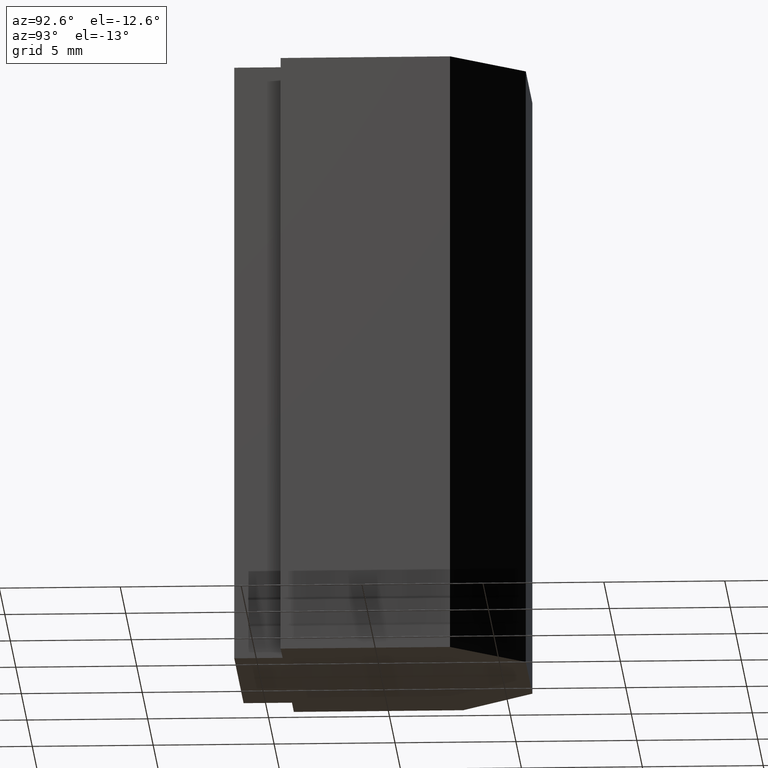
[diagram: clean part render]
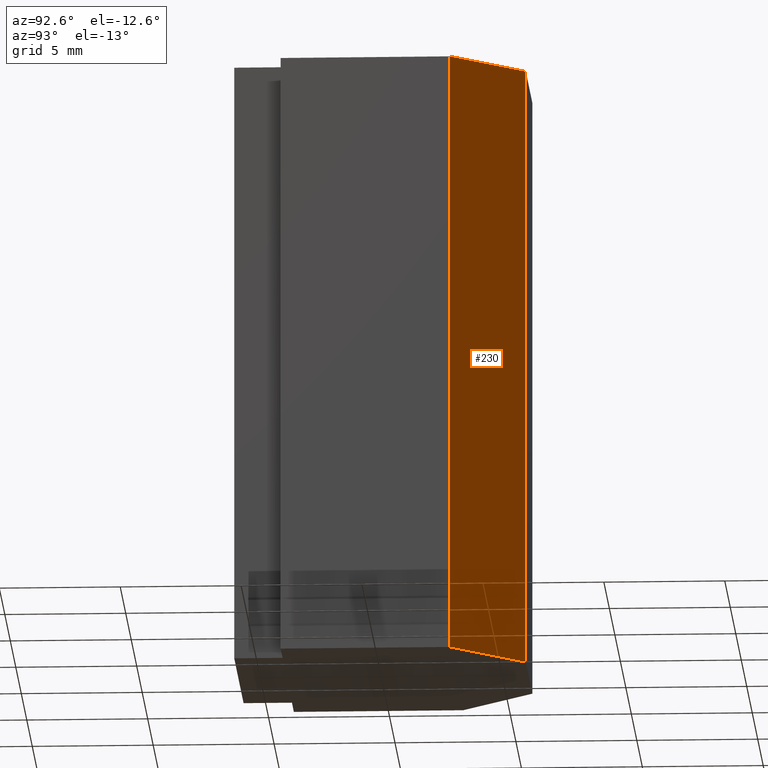
[diagram: same view with one face highlighted and labeled with its STEP entity id]
A machine part, auxiliary view. The second image highlights one B-rep face of the part: STEP entity #230.
In plain terms, the highlighted planar face has unit normal (0.7071, 0.7071, 0).
Its self-contained STEP definition (entity closure, byte-faithful):
#24=FACE_OUTER_BOUND('',#36,.T.);
#36=EDGE_LOOP('',(#188,#189,#190,#191));
#49=LINE('',#346,#79);
#64=LINE('',#376,#94);
#65=LINE('',#379,#95);
#66=LINE('',#380,#96);
#79=VECTOR('',#282,10.);
#94=VECTOR('',#311,10.);
#95=VECTOR('',#314,10.);
#96=VECTOR('',#315,10.);
#101=VERTEX_POINT('',#328);
#109=VERTEX_POINT('',#344);
#117=VERTEX_POINT('',#374);
#118=VERTEX_POINT('',#378);
#129=EDGE_CURVE('',#101,#109,#49,.T.);
#144=EDGE_CURVE('',#117,#109,#64,.T.);
#145=EDGE_CURVE('',#117,#118,#65,.T.);
#146=EDGE_CURVE('',#118,#101,#66,.T.);
#188=ORIENTED_EDGE('',*,*,#145,.T.);
#189=ORIENTED_EDGE('',*,*,#146,.T.);
#190=ORIENTED_EDGE('',*,*,#129,.T.);
#191=ORIENTED_EDGE('',*,*,#144,.F.);
#218=PLANE('',#265);
#230=ADVANCED_FACE('',(#24),#218,.T.);
#265=AXIS2_PLACEMENT_3D('',#377,#312,#313);
#282=DIRECTION('',(-0.707106781186548,0.707106781186548,0.));
#311=DIRECTION('',(0.,0.,-1.));
#312=DIRECTION('center_axis',(0.707106781186548,0.707106781186548,0.));
#313=DIRECTION('ref_axis',(0.,0.,-1.));
#314=DIRECTION('',(0.707106781186548,-0.707106781186548,0.));
#315=DIRECTION('',(0.,0.,-1.));
#328=CARTESIAN_POINT('',(6.,3.,-12.5));
#344=CARTESIAN_POINT('',(3.,6.00000000000001,-12.5));
#346=CARTESIAN_POINT('',(3.,6.00000000000001,-12.5));
#374=CARTESIAN_POINT('',(3.,6.00000000000001,12.5));
#376=CARTESIAN_POINT('',(3.,6.00000000000001,0.));
#377=CARTESIAN_POINT('Origin',(3.,6.00000000000001,0.));
#378=CARTESIAN_POINT('',(6.,3.,12.5));
#379=CARTESIAN_POINT('',(3.,6.00000000000001,12.5));
#380=CARTESIAN_POINT('',(6.,3.,0.));